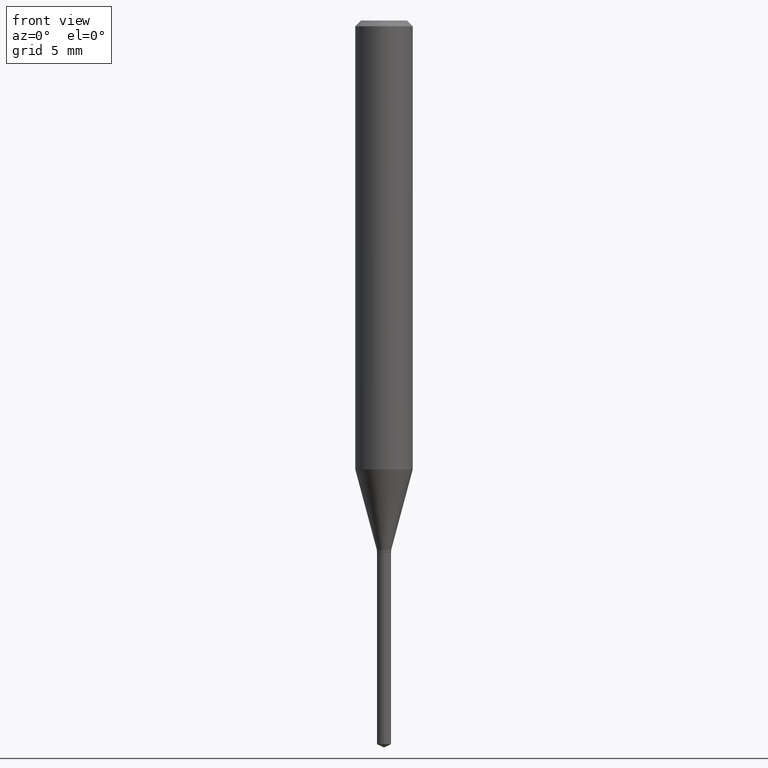
[diagram: clean part render]
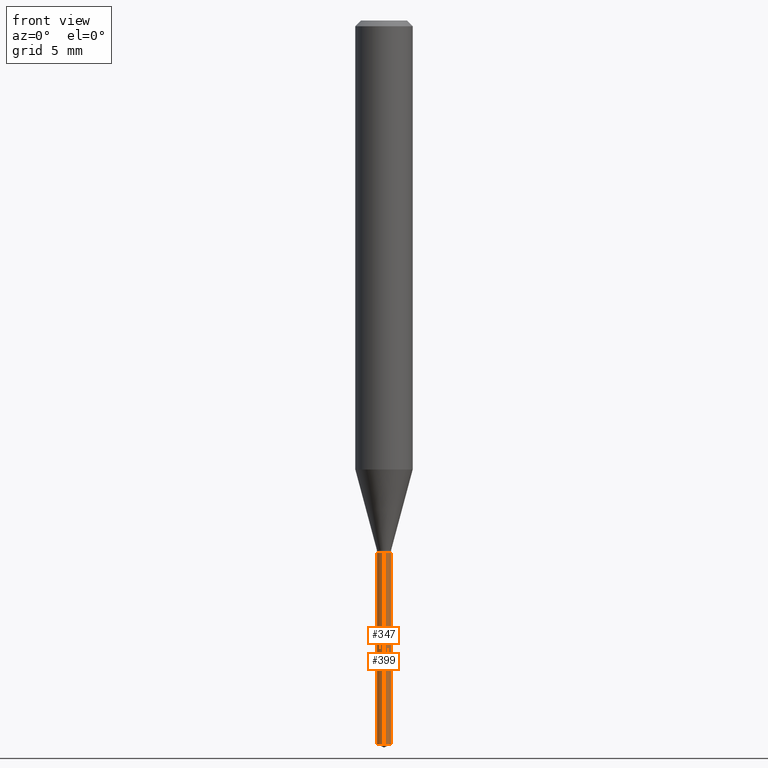
[diagram: same view with one multi-face feature highlighted, each face labeled with its STEP entity id]
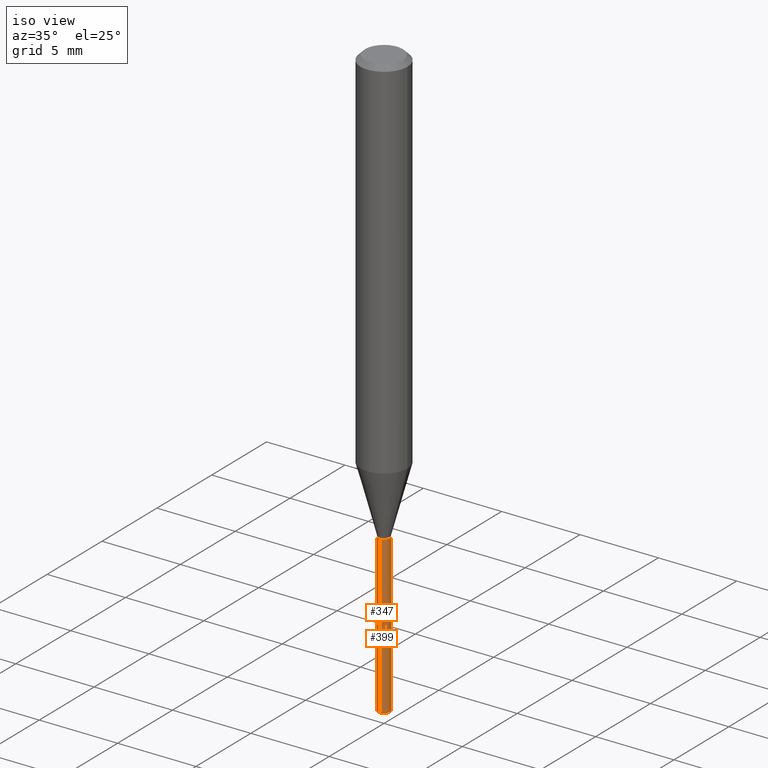
[diagram: same view with one multi-face feature highlighted, each face labeled with its STEP entity id]
A machine part, front view. The highlighted faces form ONE feature: a constant-radius fillet chain: 2 tangent blend faces with common blend radius 0.3696 mm. The faces share edges in the B-rep.
A second angle (iso view) of the same feature is appended — it is thin or edge-on in the first view.
Their STEP definitions:
[1] entity #399 (Cylinder):
#27 = EDGE_LOOP ( 'NONE', ( #43, #419, #128, #271 ) ) ;
#43 = ORIENTED_EDGE ( 'NONE', *, *, #72, .T. ) ;
#56 = DIRECTION ( 'NONE',  ( -6.982962677686266711E-15, -1.000000000000000000, 0.000000000000000000 ) ) ;
#64 = CARTESIAN_POINT ( 'NONE',  ( 2.676565608369631794E-29, -3.821426325363822773E-15, -1.094499999999999806 ) ) ;
#72 = EDGE_CURVE ( 'NONE', #397, #178, #372, .T. ) ;
#91 = CARTESIAN_POINT ( 'NONE',  ( 1.033839680531310403E-16, 0.01454999999999480494, -1.489315223573844715 ) ) ;
#116 = CARTESIAN_POINT ( 'NONE',  ( -1.016021069603084089E-16, -0.01455000000000382203, -1.094499999999999806 ) ) ;
#128 = ORIENTED_EDGE ( 'NONE', *, *, #411, .F. ) ;
#138 = DIRECTION ( 'NONE',  ( -2.445458899330790108E-29, 3.491495526022433205E-15, 1.000000000000000000 ) ) ;
#173 = AXIS2_PLACEMENT_3D ( 'NONE', #482, #250, #56 ) ;
#178 = VERTEX_POINT ( 'NONE', #91 ) ;
#180 = VECTOR ( 'NONE', #204, 39.37007874015748143 ) ;
#204 = DIRECTION ( 'NONE',  ( -2.445458899330790108E-29, 3.491495526022433599E-15, 1.000000000000000000 ) ) ;
#216 = CARTESIAN_POINT ( 'NONE',  ( 1.033839680531310526E-16, 0.01454999999999617884, -1.094499999999999806 ) ) ;
#230 = AXIS2_PLACEMENT_3D ( 'NONE', #390, #138, #300 ) ;
#232 = DIRECTION ( 'NONE',  ( -6.982962677686266711E-15, -1.000000000000000000, 0.000000000000000000 ) ) ;
#250 = DIRECTION ( 'NONE',  ( -2.445458899330790108E-29, 3.491495526022433205E-15, 1.000000000000000000 ) ) ;
#254 = LINE ( 'NONE', #116, #476 ) ;
#262 = DIRECTION ( 'NONE',  ( -2.445458899330790108E-29, 3.491495526022433205E-15, 1.000000000000000000 ) ) ;
#264 = EDGE_CURVE ( 'NONE', #178, #293, #301, .T. ) ;
#271 = ORIENTED_EDGE ( 'NONE', *, *, #295, .F. ) ;
#280 = CYLINDRICAL_SURFACE ( 'NONE', #298, 0.01455000000000000043 ) ;
#283 = VERTEX_POINT ( 'NONE', #371 ) ;
#293 = VERTEX_POINT ( 'NONE', #216 ) ;
#295 = EDGE_CURVE ( 'NONE', #397, #283, #254, .T. ) ;
#298 = AXIS2_PLACEMENT_3D ( 'NONE', #64, #262, #232 ) ;
#300 = DIRECTION ( 'NONE',  ( -6.982962677686266711E-15, -1.000000000000000000, 0.000000000000000000 ) ) ;
#301 = LINE ( 'NONE', #437, #180 ) ;
#371 = CARTESIAN_POINT ( 'NONE',  ( -1.016021069603084089E-16, -0.01455000000000382203, -1.094499999999999806 ) ) ;
#372 = CIRCLE ( 'NONE', #173, 0.01455000000000000043 ) ;
#390 = CARTESIAN_POINT ( 'NONE',  ( 2.676565608369631794E-29, -3.821426325363822773E-15, -1.094499999999999806 ) ) ;
#397 = VERTEX_POINT ( 'NONE', #463 ) ;
#399 = ADVANCED_FACE ( 'NONE', ( #466 ), #280, .T. ) ;
#411 = EDGE_CURVE ( 'NONE', #283, #293, #414, .T. ) ;
#414 = CIRCLE ( 'NONE', #230, 0.01455000000000000043 ) ;
#419 = ORIENTED_EDGE ( 'NONE', *, *, #264, .T. ) ;
#423 = DIRECTION ( 'NONE',  ( -2.445458899330790108E-29, 3.491495526022433599E-15, 1.000000000000000000 ) ) ;
#437 = CARTESIAN_POINT ( 'NONE',  ( 1.033839680531213274E-16, 0.01454999999999617884, -1.094499999999999806 ) ) ;
#463 = CARTESIAN_POINT ( 'NONE',  ( -1.016021069602987823E-16, -0.01455000000000520634, -1.489315223573844715 ) ) ;
#466 = FACE_OUTER_BOUND ( 'NONE', #27, .T. ) ;
#476 = VECTOR ( 'NONE', #423, 39.37007874015748143 ) ;
#482 = CARTESIAN_POINT ( 'NONE',  ( 3.642070010449566093E-29, -5.199921912077447787E-15, -1.489315223573844715 ) ) ;
[2] entity #347 (Cylinder):
#17 = DIRECTION ( 'NONE',  ( -6.982962677686266711E-15, -1.000000000000000000, 0.000000000000000000 ) ) ;
#38 = AXIS2_PLACEMENT_3D ( 'NONE', #119, #284, #17 ) ;
#60 = AXIS2_PLACEMENT_3D ( 'NONE', #77, #237, #139 ) ;
#66 = DIRECTION ( 'NONE',  ( -6.982962677686266711E-15, -1.000000000000000000, 0.000000000000000000 ) ) ;
#77 = CARTESIAN_POINT ( 'NONE',  ( 3.642070010449566093E-29, -5.199921912077447787E-15, -1.489315223573844715 ) ) ;
#91 = CARTESIAN_POINT ( 'NONE',  ( 1.033839680531310403E-16, 0.01454999999999480494, -1.489315223573844715 ) ) ;
#101 = FACE_OUTER_BOUND ( 'NONE', #358, .T. ) ;
#116 = CARTESIAN_POINT ( 'NONE',  ( -1.016021069603084089E-16, -0.01455000000000382203, -1.094499999999999806 ) ) ;
#119 = CARTESIAN_POINT ( 'NONE',  ( 2.676565608369631794E-29, -3.821426325363822773E-15, -1.094499999999999806 ) ) ;
#134 = CYLINDRICAL_SURFACE ( 'NONE', #38, 0.01455000000000000043 ) ;
#139 = DIRECTION ( 'NONE',  ( -6.982962677686266711E-15, -1.000000000000000000, 0.000000000000000000 ) ) ;
#164 = CIRCLE ( 'NONE', #270, 0.01455000000000000043 ) ;
#178 = VERTEX_POINT ( 'NONE', #91 ) ;
#180 = VECTOR ( 'NONE', #204, 39.37007874015748143 ) ;
#184 = DIRECTION ( 'NONE',  ( -2.445458899330790108E-29, 3.491495526022433205E-15, 1.000000000000000000 ) ) ;
#191 = CIRCLE ( 'NONE', #60, 0.01455000000000000043 ) ;
#204 = DIRECTION ( 'NONE',  ( -2.445458899330790108E-29, 3.491495526022433599E-15, 1.000000000000000000 ) ) ;
#216 = CARTESIAN_POINT ( 'NONE',  ( 1.033839680531310526E-16, 0.01454999999999617884, -1.094499999999999806 ) ) ;
#221 = ORIENTED_EDGE ( 'NONE', *, *, #295, .T. ) ;
#237 = DIRECTION ( 'NONE',  ( -2.445458899330790108E-29, 3.491495526022433205E-15, 1.000000000000000000 ) ) ;
#240 = ORIENTED_EDGE ( 'NONE', *, *, #264, .F. ) ;
#254 = LINE ( 'NONE', #116, #476 ) ;
#257 = EDGE_CURVE ( 'NONE', #178, #397, #191, .T. ) ;
#264 = EDGE_CURVE ( 'NONE', #178, #293, #301, .T. ) ;
#270 = AXIS2_PLACEMENT_3D ( 'NONE', #276, #184, #66 ) ;
#276 = CARTESIAN_POINT ( 'NONE',  ( 2.676565608369631794E-29, -3.821426325363822773E-15, -1.094499999999999806 ) ) ;
#283 = VERTEX_POINT ( 'NONE', #371 ) ;
#284 = DIRECTION ( 'NONE',  ( -2.445458899330790108E-29, 3.491495526022433205E-15, 1.000000000000000000 ) ) ;
#293 = VERTEX_POINT ( 'NONE', #216 ) ;
#295 = EDGE_CURVE ( 'NONE', #397, #283, #254, .T. ) ;
#301 = LINE ( 'NONE', #437, #180 ) ;
#307 = EDGE_CURVE ( 'NONE', #293, #283, #164, .T. ) ;
#347 = ADVANCED_FACE ( 'NONE', ( #101 ), #134, .T. ) ;
#358 = EDGE_LOOP ( 'NONE', ( #240, #442, #221, #422 ) ) ;
#371 = CARTESIAN_POINT ( 'NONE',  ( -1.016021069603084089E-16, -0.01455000000000382203, -1.094499999999999806 ) ) ;
#397 = VERTEX_POINT ( 'NONE', #463 ) ;
#422 = ORIENTED_EDGE ( 'NONE', *, *, #307, .F. ) ;
#423 = DIRECTION ( 'NONE',  ( -2.445458899330790108E-29, 3.491495526022433599E-15, 1.000000000000000000 ) ) ;
#437 = CARTESIAN_POINT ( 'NONE',  ( 1.033839680531213274E-16, 0.01454999999999617884, -1.094499999999999806 ) ) ;
#442 = ORIENTED_EDGE ( 'NONE', *, *, #257, .T. ) ;
#463 = CARTESIAN_POINT ( 'NONE',  ( -1.016021069602987823E-16, -0.01455000000000520634, -1.489315223573844715 ) ) ;
#476 = VECTOR ( 'NONE', #423, 39.37007874015748143 ) ;